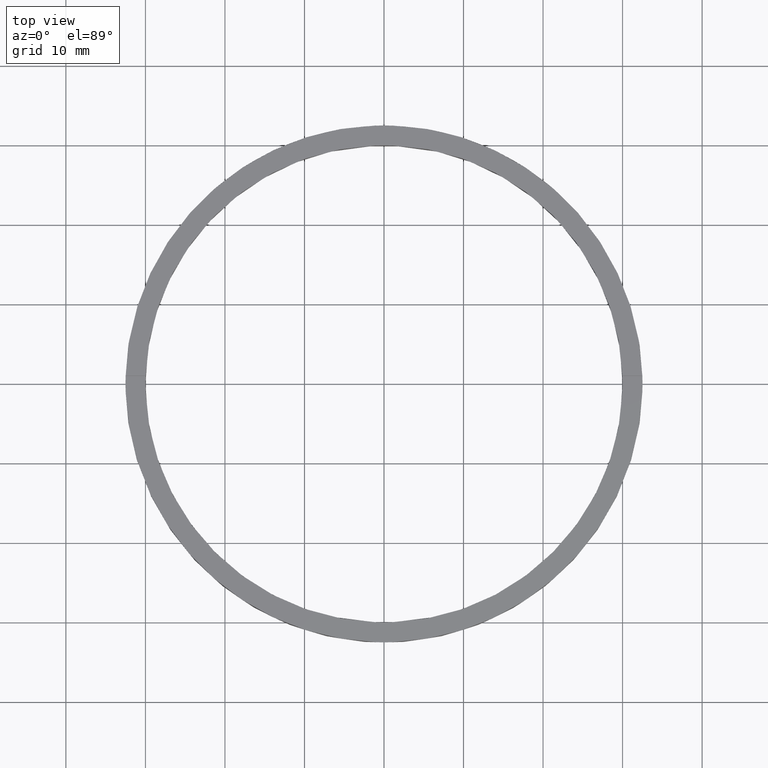
[diagram: clean part render]
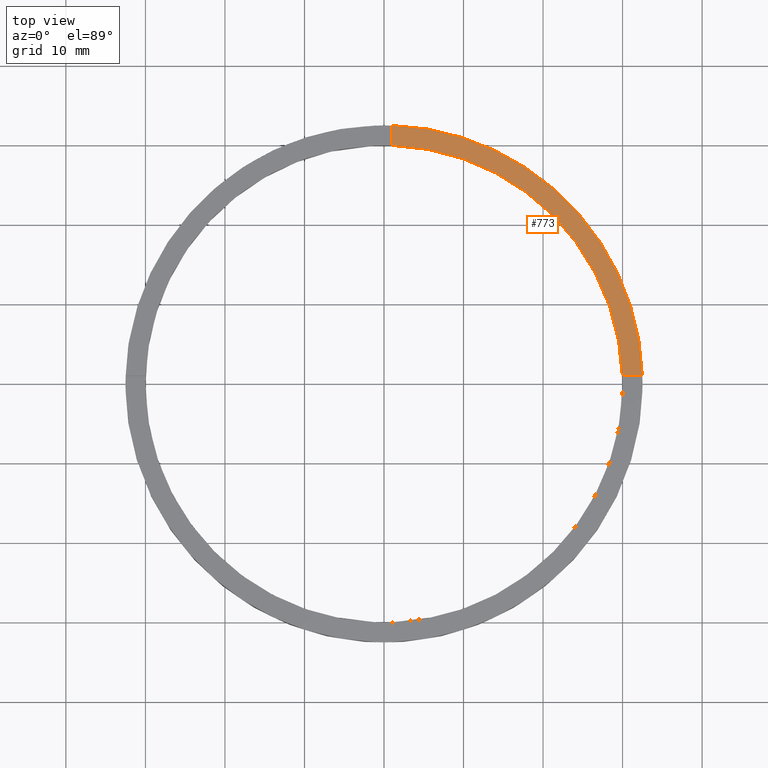
[diagram: same view with one face highlighted and labeled with its STEP entity id]
A machine part, top view. The second image highlights one B-rep face of the part: STEP entity #773.
In plain terms, the highlighted planar face has unit normal (0, 0, 1).
Its self-contained STEP definition (entity closure, byte-faithful):
#6 = EDGE_CURVE ( 'NONE', #388, #27, #32, .T. ) ;
#15 = AXIS2_PLACEMENT_3D ( 'NONE', #90, #268, #776 ) ;
#24 = CIRCLE ( 'NONE', #522, 30.00000000000000000 ) ;
#27 = VERTEX_POINT ( 'NONE', #102 ) ;
#32 = CIRCLE ( 'NONE', #15, 32.50000000000000000 ) ;
#80 = VERTEX_POINT ( 'NONE', #774 ) ;
#90 = CARTESIAN_POINT ( 'NONE',  ( 0.000000000000000000, 0.000000000000000000, 3.000000000000000000 ) ) ;
#101 = LINE ( 'NONE', #280, #370 ) ;
#102 = CARTESIAN_POINT ( 'NONE',  ( 0.9999999999999753530, 32.48461174156157227, 3.000000000000000000 ) ) ;
#132 = EDGE_CURVE ( 'NONE', #585, #80, #24, .T. ) ;
#136 = PLANE ( 'NONE',  #412 ) ;
#176 = ORIENTED_EDGE ( 'NONE', *, *, #132, .F. ) ;
#200 = EDGE_LOOP ( 'NONE', ( #315, #176, #482, #460 ) ) ;
#253 = CARTESIAN_POINT ( 'NONE',  ( 32.48461174156157938, 0.9999999999998414602, 3.000000000000000000 ) ) ;
#266 = DIRECTION ( 'NONE',  ( 0.000000000000000000, 1.000000000000000000, 0.000000000000000000 ) ) ;
#268 = DIRECTION ( 'NONE',  ( 0.000000000000000000, 0.000000000000000000, 1.000000000000000000 ) ) ;
#270 = CARTESIAN_POINT ( 'NONE',  ( 29.98332870112990278, 0.9999999999998412381, 3.000000000000000000 ) ) ;
#280 = CARTESIAN_POINT ( 'NONE',  ( 0.9999999999999753530, 22.50000000000000000, 3.000000000000000000 ) ) ;
#293 = CARTESIAN_POINT ( 'NONE',  ( 0.000000000000000000, 0.000000000000000000, 3.000000000000000000 ) ) ;
#297 = FACE_OUTER_BOUND ( 'NONE', #200, .T. ) ;
#314 = CARTESIAN_POINT ( 'NONE',  ( 22.49999999999999645, 0.9999999999998409050, 3.000000000000000000 ) ) ;
#315 = ORIENTED_EDGE ( 'NONE', *, *, #350, .F. ) ;
#323 = DIRECTION ( 'NONE',  ( -1.000000000000000000, -6.505213034913022906E-17, -0.000000000000000000 ) ) ;
#343 = VECTOR ( 'NONE', #323, 1000.000000000000000 ) ;
#350 = EDGE_CURVE ( 'NONE', #80, #27, #101, .T. ) ;
#370 = VECTOR ( 'NONE', #266, 1000.000000000000000 ) ;
#383 = DIRECTION ( 'NONE',  ( 1.000000000000000000, 0.000000000000000000, -0.000000000000000000 ) ) ;
#388 = VERTEX_POINT ( 'NONE', #253 ) ;
#412 = AXIS2_PLACEMENT_3D ( 'NONE', #510, #508, #383 ) ;
#460 = ORIENTED_EDGE ( 'NONE', *, *, #6, .T. ) ;
#482 = ORIENTED_EDGE ( 'NONE', *, *, #751, .F. ) ;
#501 = DIRECTION ( 'NONE',  ( 0.000000000000000000, 0.000000000000000000, 1.000000000000000000 ) ) ;
#508 = DIRECTION ( 'NONE',  ( 0.000000000000000000, 0.000000000000000000, 1.000000000000000000 ) ) ;
#510 = CARTESIAN_POINT ( 'NONE',  ( 0.000000000000000000, 0.000000000000000000, 3.000000000000000000 ) ) ;
#522 = AXIS2_PLACEMENT_3D ( 'NONE', #293, #501, #538 ) ;
#538 = DIRECTION ( 'NONE',  ( 1.000000000000000000, 0.000000000000000000, 0.000000000000000000 ) ) ;
#585 = VERTEX_POINT ( 'NONE', #270 ) ;
#605 = LINE ( 'NONE', #314, #343 ) ;
#751 = EDGE_CURVE ( 'NONE', #388, #585, #605, .T. ) ;
#773 = ADVANCED_FACE ( 'NONE', ( #297 ), #136, .T. ) ;
#774 = CARTESIAN_POINT ( 'NONE',  ( 0.9999999999999753530, 29.98332870112989923, 3.000000000000000000 ) ) ;
#776 = DIRECTION ( 'NONE',  ( 1.000000000000000000, 0.000000000000000000, 0.000000000000000000 ) ) ;